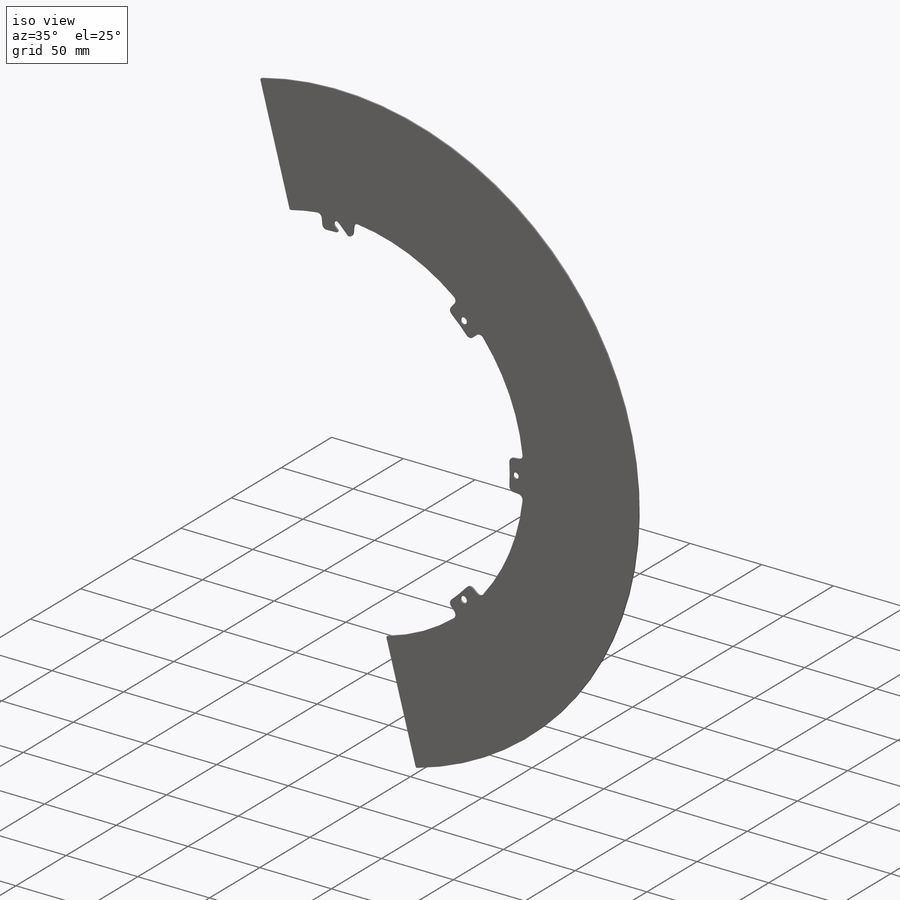
[diagram: iso view]
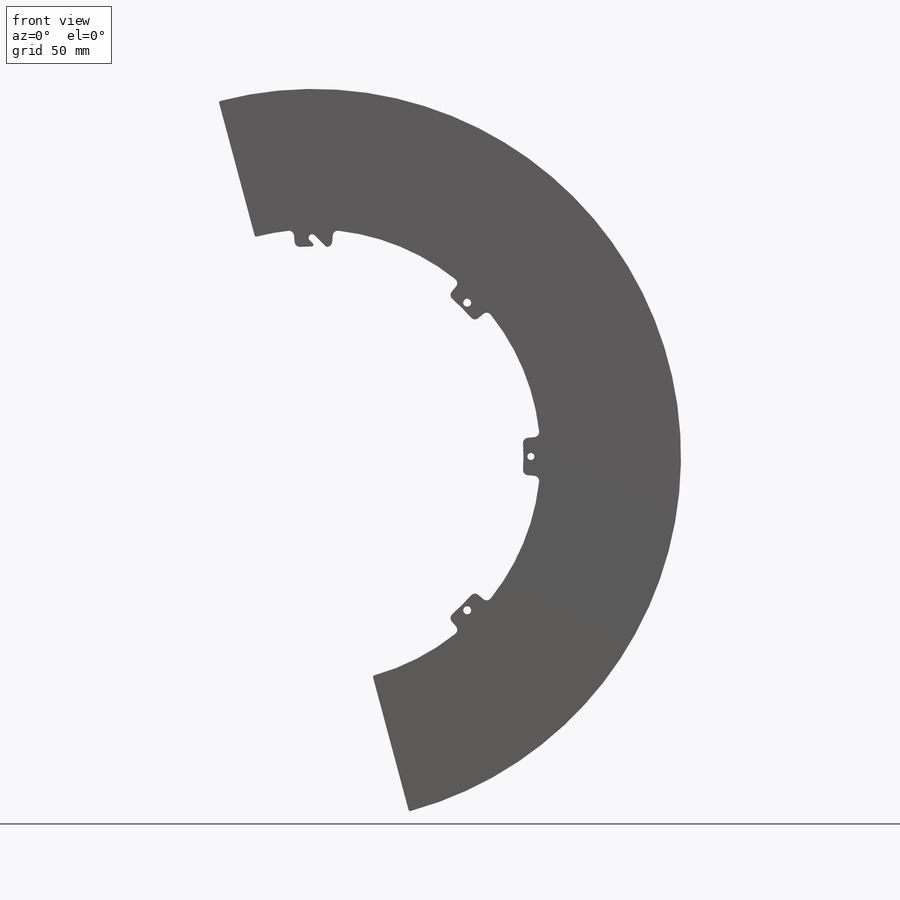
[diagram: front view]
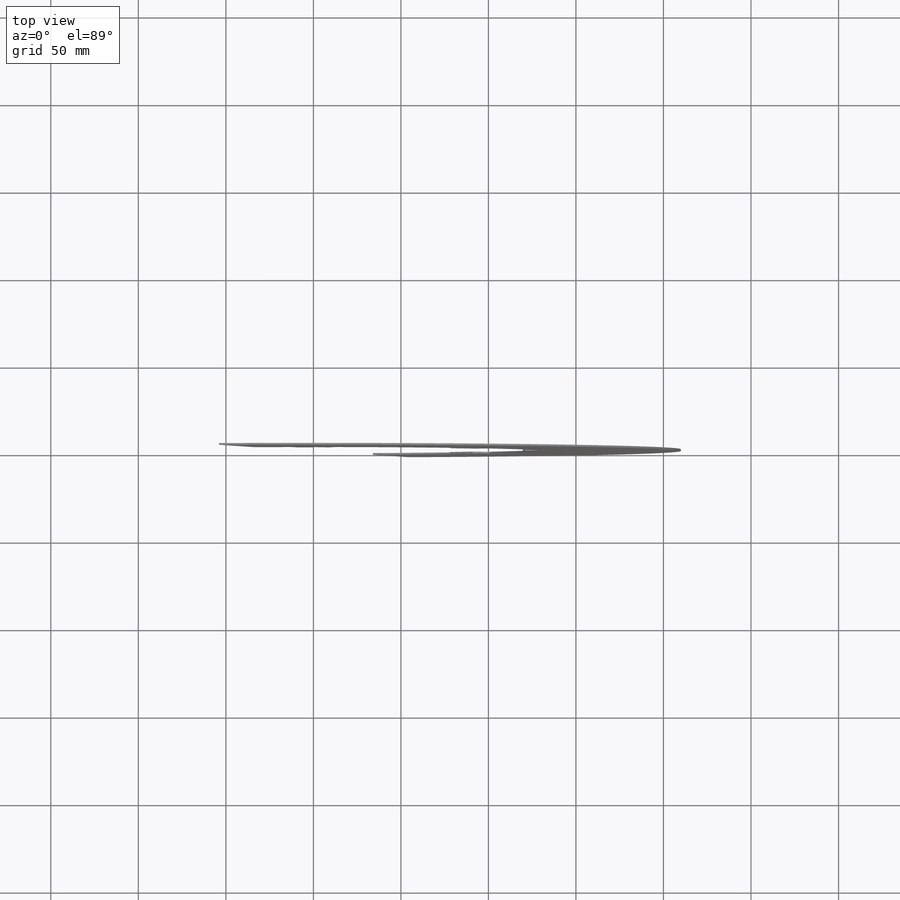
[diagram: top view]
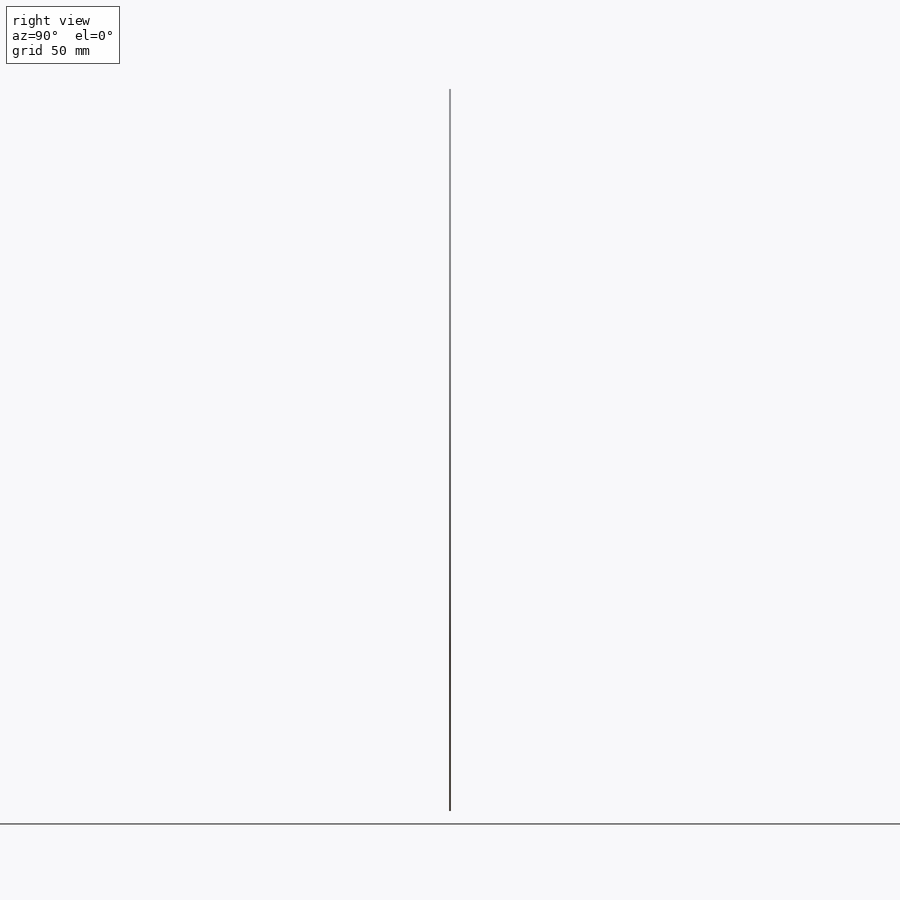
[diagram: right view]
SOLIDWORKS PART (.sldprt)
format: sldprt  version: not decoded by parser v0  size: 362,496 bytes
history: native  units: mm
features: sketch x8, pattern_circular x3, cut_extrude x3, hole x2, fillet x2, material x1 (+11 scaffold rows collapsed)
feature tree (30):
  scaffold x11  (default folders/planes/origin — collapsed)
  material  "Hexcel AS4C (3000 Filaments)"
  sketch  "Sketch1"  dims[c1.D1=5.0mm c1.D2=10.0mm c1.D3=11.0mm c1.D4=240.0mm c1.D5=420.0mm c1.D6=0.0mm c2.D1=~9.037385mm c3.D1=165.0deg c3.D2=15.0deg c3.D3=1.0mm c3.D4=1.0mm c3.D7=0.0mm]
  hole  "Ø4.5 (4.5) Diameter Hole1"  Diameter=4.5mm Depth=1mm
  sketch  "Sketch5"  dims[D1=124.25mm D2=45.0deg]
  sketch  "Sketch6"  dims[hole-wizard template sketch: 61 standard entries collapsed; hole parameters above]
  pattern_circular  "CirPattern1"  Count=2 Angle=90deg
  hole  "Ø4.0 (4) Diameter Hole1"  Diameter=4mm Depth=1mm
  sketch  "Sketch8"
  sketch  "Sketch7"  dims[hole-wizard template sketch: 61 standard entries collapsed; hole parameters above]
  pattern_circular  "CirPattern2"  Count=4 Angle=90deg
  sketch  "Sketch9"  dims[c1.D3=248.5mm c1.D1=~139.533894mm c2.D1=5.0deg c2.D2=~139.533894mm c3.D2=35.0deg c3.D3=5.5mm c3.D1=124.25mm c4.D1=5.0deg]
  cut_extrude  "Cut-Extrude1"  [1 undecoded]
  fillet  "Fillet1"  Radius=3mm
  pattern_circular  "CirPattern3"  Count=8 Angle=45deg
  sketch  "Sketch10"  dims[D1=1.0mm]
  cut_extrude  "Cut-Extrude2"  Depth=10mm
  sketch  "Sketch11"  dims[D1=0.25mm]
  cut_extrude  "Cut-Extrude3"  [1 undecoded]
  fillet  "Fillet2"  Radius=1mm
decode coverage: 15 of 18 modeling features carry decoded parameters
note: ~ marks probable driven/reference dimensions
note: 2 parameter values undecoded
note: suppression state not decoded; provenance and decode notes live in map.json
